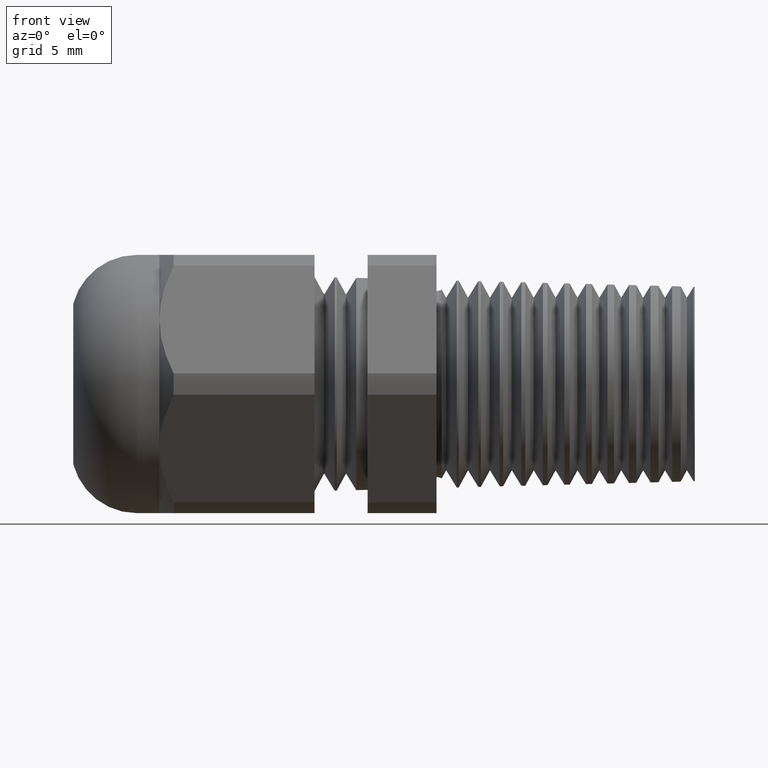
[diagram: clean part render]
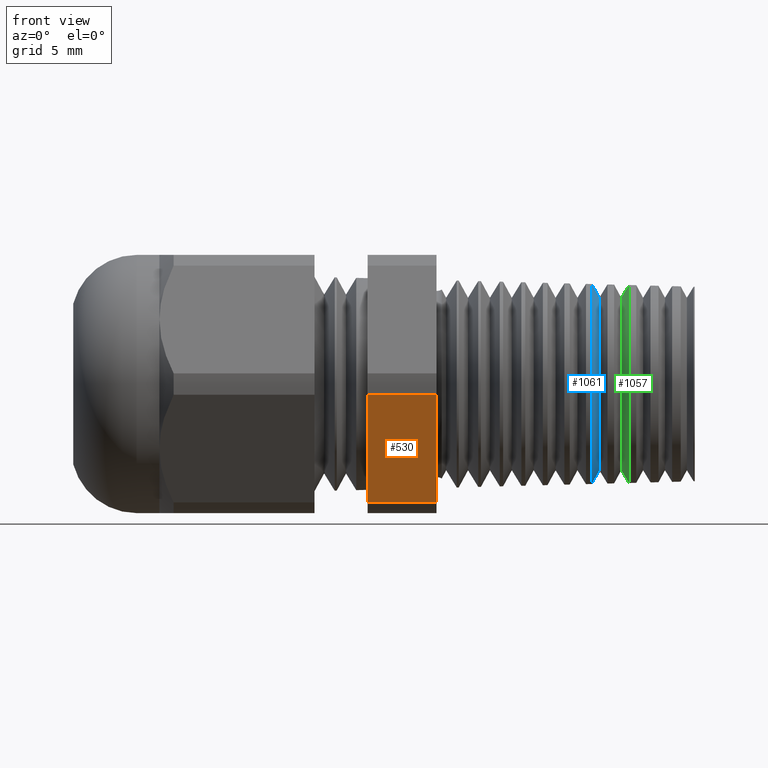
[diagram: same view with three faces highlighted in distinct colors, each labeled with its STEP entity id]
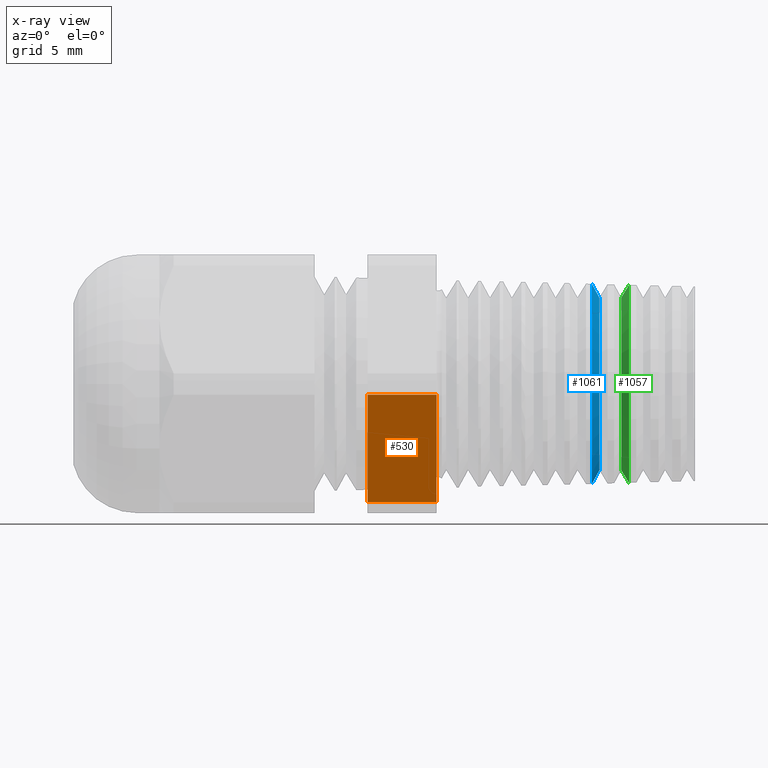
[diagram: x-ray of the same camera — body ghosted, the three highlighted faces saturated]
A machine part, front view with three faces highlighted in distinct colors.
The next image is the same camera in x-ray (body ghosted, the three faces saturated) — at least one of them is partly hidden behind the body in this view.
Their STEP definitions:

[orange] entity #530 — the highlighted planar face has unit normal (0, -0.866, -0.5).
#463 = VERTEX_POINT ( 'NONE', #2085 ) ;
#465 = EDGE_CURVE ( 'NONE', #463, #466, #2084, .T. ) ;
#466 = VERTEX_POINT ( 'NONE', #2080 ) ;
#528 = EDGE_CURVE ( 'NONE', #3785, #466, #2133, .T. ) ;
#530 = ADVANCED_FACE ( 'NONE', ( #2188 ), #2187, .T. ) ;
#531 = EDGE_LOOP ( 'NONE', ( #532, #533, #534, #590 ) ) ;
#532 = ORIENTED_EDGE ( 'NONE', *, *, #528, .T. ) ;
#533 = ORIENTED_EDGE ( 'NONE', *, *, #465, .F. ) ;
#534 = ORIENTED_EDGE ( 'NONE', *, *, #535, .F. ) ;
#535 = EDGE_CURVE ( 'NONE', #3786, #463, #2182, .T. ) ;
#590 = ORIENTED_EDGE ( 'NONE', *, *, #3778, .F. ) ;
#2080 = CARTESIAN_POINT ( 'NONE',  ( -0.4674799999999996200, -0.3265382119920402500, -0.02441922621708987600 ) ) ;
#2081 = DIRECTION ( 'NONE',  ( 0.0000000000000000000, -0.5000000000000001100, 0.8660254037844386000 ) ) ;
#2082 = VECTOR ( 'NONE', #2081, 39.37007874015748100 ) ;
#2083 = CARTESIAN_POINT ( 'NONE',  ( -0.4674799999999999000, -0.1079774941164095600, -0.4029774941164095400 ) ) ;
#2084 = LINE ( 'NONE', #2083, #2082 ) ;
#2085 = CARTESIAN_POINT ( 'NONE',  ( -0.4674799999999996200, -0.1844167762407788700, -0.2705807737829104600 ) ) ;
#2126 = DIRECTION ( 'NONE',  ( -1.000000000000000000, 0.0000000000000000000, 0.0000000000000000000 ) ) ;
#2127 = VECTOR ( 'NONE', #2126, 39.37007874015748100 ) ;
#2128 = CARTESIAN_POINT ( 'NONE',  ( 0.2800000000000000300, -0.3265382119920402500, -0.02441922621708987600 ) ) ;
#2133 = LINE ( 'NONE', #2128, #2127 ) ;
#2179 = DIRECTION ( 'NONE',  ( -1.000000000000000000, 0.0000000000000000000, 0.0000000000000000000 ) ) ;
#2180 = VECTOR ( 'NONE', #2179, 39.37007874015748100 ) ;
#2181 = CARTESIAN_POINT ( 'NONE',  ( 0.2800000000000000300, -0.1844167762407788700, -0.2705807737829104600 ) ) ;
#2182 = LINE ( 'NONE', #2181, #2180 ) ;
#2183 = DIRECTION ( 'NONE',  ( 0.0000000000000000000, 0.5000000000000001100, -0.8660254037844386000 ) ) ;
#2184 = DIRECTION ( 'NONE',  ( 0.0000000000000000000, -0.8660254037844386000, -0.5000000000000001100 ) ) ;
#2185 = CARTESIAN_POINT ( 'NONE',  ( 0.2800000000000000300, -0.1844167762407788700, -0.2705807737829104000 ) ) ;
#2186 = AXIS2_PLACEMENT_3D ( 'NONE', #2185, #2184, #2183 ) ;
#2187 = PLANE ( 'NONE',  #2186 ) ;
#2188 = FACE_OUTER_BOUND ( 'NONE', #531, .T. ) ;
#3376 = CARTESIAN_POINT ( 'NONE',  ( -0.3100000000000000000, -0.1079774941164095600, -0.4029774941164095400 ) ) ;
#3377 = LINE ( 'NONE', #3376, #3437 ) ;
#3423 = CARTESIAN_POINT ( 'NONE',  ( -0.3099999999999998300, -0.1844167762407788700, -0.2705807737829104600 ) ) ;
#3424 = CARTESIAN_POINT ( 'NONE',  ( -0.3099999999999998300, -0.3265382119920402500, -0.02441922621708987600 ) ) ;
#3436 = DIRECTION ( 'NONE',  ( 0.0000000000000000000, 0.5000000000000001100, -0.8660254037844386000 ) ) ;
#3437 = VECTOR ( 'NONE', #3436, 39.37007874015748100 ) ;
#3778 = EDGE_CURVE ( 'NONE', #3785, #3786, #3377, .T. ) ;
#3785 = VERTEX_POINT ( 'NONE', #3424 ) ;
#3786 = VERTEX_POINT ( 'NONE', #3423 ) ;

[blue] entity #1061 — the highlighted conical surface has half-angle 61.5 deg.
#298 = EDGE_CURVE ( 'NONE', #923, #1000, #1799, .T. ) ;
#923 = VERTEX_POINT ( 'NONE', #2817 ) ;
#925 = EDGE_CURVE ( 'NONE', #1035, #923, #2816, .T. ) ;
#999 = EDGE_CURVE ( 'NONE', #1034, #1000, #2988, .T. ) ;
#1000 = VERTEX_POINT ( 'NONE', #2981 ) ;
#1034 = VERTEX_POINT ( 'NONE', #3049 ) ;
#1035 = VERTEX_POINT ( 'NONE', #3048 ) ;
#1061 = ADVANCED_FACE ( 'NONE', ( #3081 ), #3076, .T. ) ;
#1062 = EDGE_LOOP ( 'NONE', ( #1063, #1064, #1066, #1067 ) ) ;
#1063 = ORIENTED_EDGE ( 'NONE', *, *, #999, .F. ) ;
#1064 = ORIENTED_EDGE ( 'NONE', *, *, #1065, .F. ) ;
#1065 = EDGE_CURVE ( 'NONE', #1035, #1034, #3070, .T. ) ;
#1066 = ORIENTED_EDGE ( 'NONE', *, *, #925, .T. ) ;
#1067 = ORIENTED_EDGE ( 'NONE', *, *, #298, .T. ) ;
#1796 = DIRECTION ( 'NONE',  ( 0.0000000000000000000, 0.0000000000000000000, 1.000000000000000000 ) ) ;
#1797 = DIRECTION ( 'NONE',  ( 1.000000000000000000, 0.0000000000000000000, 0.0000000000000000000 ) ) ;
#1798 = AXIS2_PLACEMENT_3D ( 'NONE', #1803, #1797, #1796 ) ;
#1799 = CIRCLE ( 'NONE', #1798, 0.2284016111382258800 ) ;
#1803 = CARTESIAN_POINT ( 'NONE',  ( 0.04504799980645209800, 0.0000000000000000000, 0.0000000000000000000 ) ) ;
#2813 = DIRECTION ( 'NONE',  ( -0.4771587602596065700, 0.0000000000000000000, 0.8788171126619663800 ) ) ;
#2814 = VECTOR ( 'NONE', #2813, 39.37007874015748100 ) ;
#2815 = CARTESIAN_POINT ( 'NONE',  ( 0.04000000000000004900, 0.0000000000000000000, 0.2376988702144518000 ) ) ;
#2816 = LINE ( 'NONE', #2815, #2814 ) ;
#2817 = CARTESIAN_POINT ( 'NONE',  ( 0.04504799980645209800, 0.0000000000000000000, 0.2284016111382258800 ) ) ;
#2981 = CARTESIAN_POINT ( 'NONE',  ( 0.04504799980645209800, 2.799295891443632700E-017, -0.2284016111382258800 ) ) ;
#2982 = DIRECTION ( 'NONE',  ( -0.4771587602596065700, 1.076240564057396000E-016, -0.8788171126619663800 ) ) ;
#2983 = VECTOR ( 'NONE', #2982, 39.37007874015748100 ) ;
#2984 = CARTESIAN_POINT ( 'NONE',  ( 0.04000000000000004900, 2.910971605690705400E-017, -0.2376988702144518000 ) ) ;
#2988 = LINE ( 'NONE', #2984, #2983 ) ;
#3048 = CARTESIAN_POINT ( 'NONE',  ( 0.06203901909456571000, 0.0000000000000000000, 0.1971080464893451000 ) ) ;
#3049 = CARTESIAN_POINT ( 'NONE',  ( 0.06203901909456571000, 2.605495201099454900E-017, -0.1971080464893451000 ) ) ;
#3067 = DIRECTION ( 'NONE',  ( 0.0000000000000000000, 0.0000000000000000000, -1.000000000000000000 ) ) ;
#3068 = DIRECTION ( 'NONE',  ( 1.000000000000000000, 0.0000000000000000000, 0.0000000000000000000 ) ) ;
#3069 = AXIS2_PLACEMENT_3D ( 'NONE', #3075, #3068, #3067 ) ;
#3070 = CIRCLE ( 'NONE', #3069, 0.1971080464893451000 ) ;
#3071 = DIRECTION ( 'NONE',  ( 0.0000000000000000000, 0.0000000000000000000, 1.000000000000000000 ) ) ;
#3072 = DIRECTION ( 'NONE',  ( -1.000000000000000000, 0.0000000000000000000, 0.0000000000000000000 ) ) ;
#3073 = CARTESIAN_POINT ( 'NONE',  ( 0.04000000000000004900, 0.0000000000000000000, 0.0000000000000000000 ) ) ;
#3074 = AXIS2_PLACEMENT_3D ( 'NONE', #3073, #3072, #3071 ) ;
#3075 = CARTESIAN_POINT ( 'NONE',  ( 0.06203901909456571000, 0.0000000000000000000, 0.0000000000000000000 ) ) ;
#3076 = CONICAL_SURFACE ( 'NONE', #3074, 0.2376988702144518000, 1.073377489976514700 ) ;
#3081 = FACE_OUTER_BOUND ( 'NONE', #1062, .T. ) ;

[green] entity #1057 — the highlighted conical surface has half-angle 58.5 deg.
#249 = EDGE_CURVE ( 'NONE', #1029, #1026, #1656, .T. ) ;
#1022 = VERTEX_POINT ( 'NONE', #3010 ) ;
#1023 = VERTEX_POINT ( 'NONE', #3009 ) ;
#1025 = EDGE_CURVE ( 'NONE', #1023, #1026, #3008, .T. ) ;
#1026 = VERTEX_POINT ( 'NONE', #3004 ) ;
#1029 = VERTEX_POINT ( 'NONE', #2998 ) ;
#1031 = EDGE_CURVE ( 'NONE', #1022, #1029, #2997, .T. ) ;
#1054 = EDGE_CURVE ( 'NONE', #1023, #1022, #3026, .T. ) ;
#1057 = ADVANCED_FACE ( 'NONE', ( #3083 ), #3082, .T. ) ;
#1058 = EDGE_LOOP ( 'NONE', ( #1109, #1110, #1112, #1113 ) ) ;
#1109 = ORIENTED_EDGE ( 'NONE', *, *, #1025, .F. ) ;
#1110 = ORIENTED_EDGE ( 'NONE', *, *, #1054, .T. ) ;
#1112 = ORIENTED_EDGE ( 'NONE', *, *, #1031, .T. ) ;
#1113 = ORIENTED_EDGE ( 'NONE', *, *, #249, .T. ) ;
#1652 = DIRECTION ( 'NONE',  ( 0.0000000000000000000, 0.0000000000000000000, -1.000000000000000000 ) ) ;
#1653 = DIRECTION ( 'NONE',  ( -1.000000000000000000, 0.0000000000000000000, 0.0000000000000000000 ) ) ;
#1654 = CARTESIAN_POINT ( 'NONE',  ( 0.1298548653196456600, 0.0000000000000000000, 0.0000000000000000000 ) ) ;
#1655 = AXIS2_PLACEMENT_3D ( 'NONE', #1654, #1653, #1652 ) ;
#1656 = CIRCLE ( 'NONE', #1655, 0.2261808652093693900 ) ;
#2994 = DIRECTION ( 'NONE',  ( 0.5224985647159503500, 0.0000000000000000000, -0.8526401643540911800 ) ) ;
#2995 = VECTOR ( 'NONE', #2994, 39.37007874015748900 ) ;
#2996 = CARTESIAN_POINT ( 'NONE',  ( 0.1120390190945657200, 0.0000000000000000000, -0.1971080464893451000 ) ) ;
#2997 = LINE ( 'NONE', #2996, #2995 ) ;
#2998 = CARTESIAN_POINT ( 'NONE',  ( 0.1298548653196456600, 2.769916726070331900E-017, -0.2261808652093693900 ) ) ;
#3004 = CARTESIAN_POINT ( 'NONE',  ( 0.1298548653196456600, 0.0000000000000000000, 0.2261808652093693900 ) ) ;
#3005 = DIRECTION ( 'NONE',  ( 0.5224985647159503500, 1.044183048100710800E-016, 0.8526401643540911800 ) ) ;
#3006 = VECTOR ( 'NONE', #3005, 39.37007874015748900 ) ;
#3007 = CARTESIAN_POINT ( 'NONE',  ( 0.1120390190945657200, 2.413877382193641800E-017, 0.1971080464893451000 ) ) ;
#3008 = LINE ( 'NONE', #3007, #3006 ) ;
#3009 = CARTESIAN_POINT ( 'NONE',  ( 0.1120390190945657200, 0.0000000000000000000, 0.1971080464893451000 ) ) ;
#3010 = CARTESIAN_POINT ( 'NONE',  ( 0.1120390190945657200, 2.597362444979066100E-017, -0.1971080464893451000 ) ) ;
#3026 = CIRCLE ( 'NONE', #3087, 0.1971080464893451000 ) ;
#3077 = DIRECTION ( 'NONE',  ( 0.0000000000000000000, 0.0000000000000000000, -1.000000000000000000 ) ) ;
#3078 = DIRECTION ( 'NONE',  ( 1.000000000000000000, 0.0000000000000000000, 0.0000000000000000000 ) ) ;
#3079 = CARTESIAN_POINT ( 'NONE',  ( 0.1120390190945657200, 0.0000000000000000000, 0.0000000000000000000 ) ) ;
#3080 = AXIS2_PLACEMENT_3D ( 'NONE', #3079, #3078, #3077 ) ;
#3082 = CONICAL_SURFACE ( 'NONE', #3080, 0.1971080464893451000, 1.021017612416681000 ) ;
#3083 = FACE_OUTER_BOUND ( 'NONE', #1058, .T. ) ;
#3084 = DIRECTION ( 'NONE',  ( 0.0000000000000000000, 0.0000000000000000000, -1.000000000000000000 ) ) ;
#3085 = DIRECTION ( 'NONE',  ( 1.000000000000000000, 0.0000000000000000000, 0.0000000000000000000 ) ) ;
#3086 = CARTESIAN_POINT ( 'NONE',  ( 0.1120390190945657200, 0.0000000000000000000, 0.0000000000000000000 ) ) ;
#3087 = AXIS2_PLACEMENT_3D ( 'NONE', #3086, #3085, #3084 ) ;